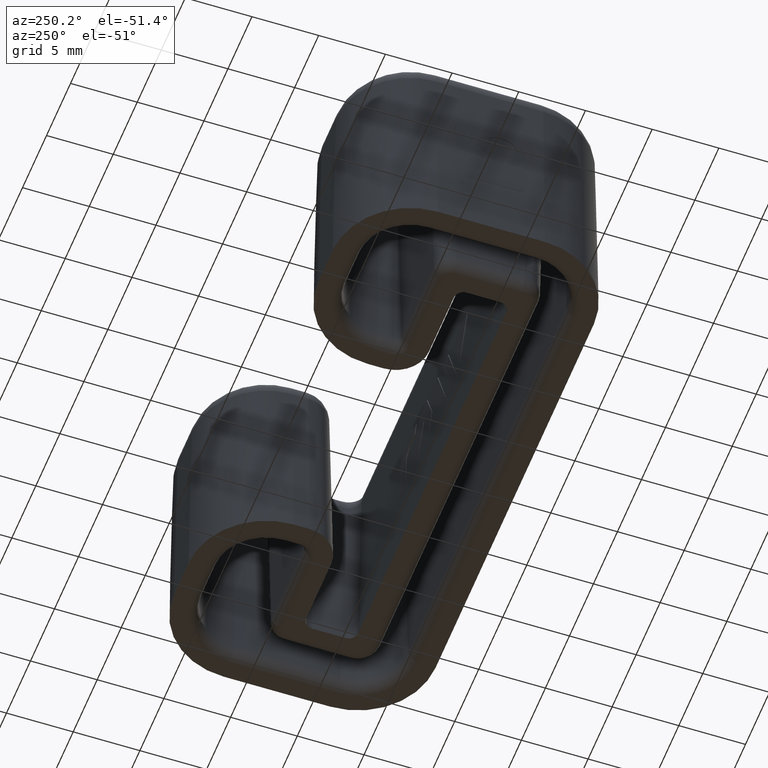
[diagram: clean part render]
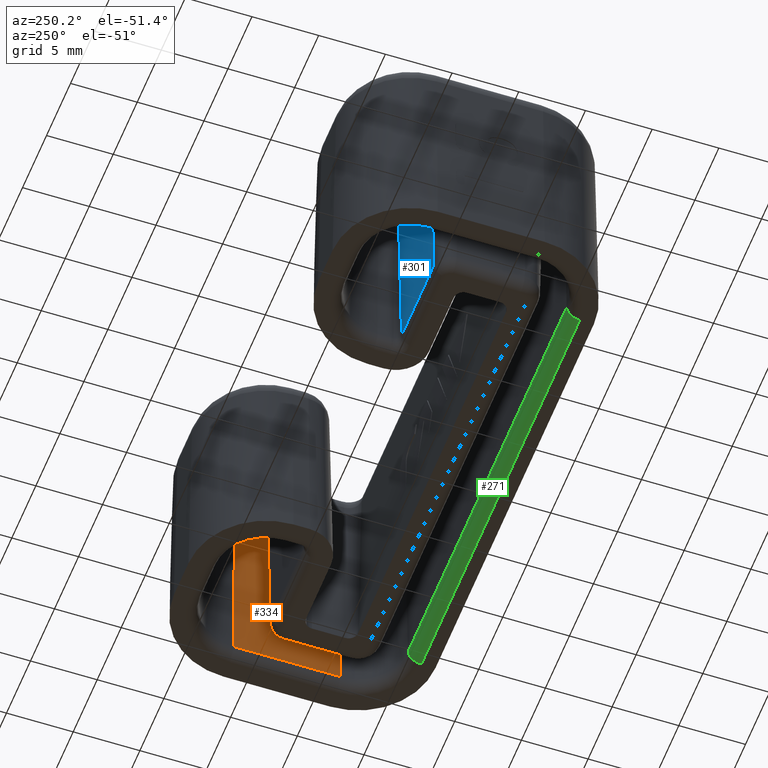
[diagram: same view with three faces highlighted in distinct colors, each labeled with its STEP entity id]
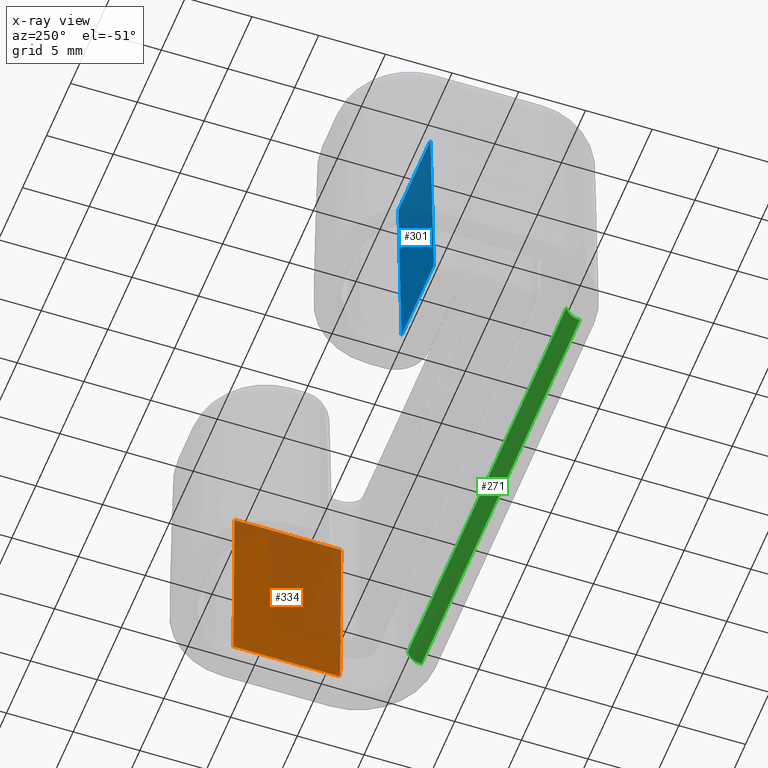
[diagram: x-ray of the same camera — body ghosted, the three highlighted faces saturated]
A machine part, auxiliary view with three faces highlighted in distinct colors.
The next image is the same camera in x-ray (body ghosted, the three faces saturated) — at least one of them is partly hidden behind the body in this view.
Their STEP definitions:

[orange] entity #334 — the highlighted planar face has unit normal (-0.9998, 0, -0.0175).
#334=ADVANCED_FACE('',(#716),#717,.T.);
#716=FACE_OUTER_BOUND('',#1138,.T.);
#717=PLANE('',#1139);
#1138=EDGE_LOOP('',(#2823,#2824,#2825,#2826));
#1139=AXIS2_PLACEMENT_3D('',#2827,#2828,#2829);
#2823=ORIENTED_EDGE('',*,*,#3325,.F.);
#2824=ORIENTED_EDGE('',*,*,#3195,.T.);
#2825=ORIENTED_EDGE('',*,*,#3281,.T.);
#2826=ORIENTED_EDGE('',*,*,#3264,.T.);
#2827=CARTESIAN_POINT('',(20.0,0.0,15.0));
#2828=DIRECTION('',(-0.999847695156391,0.0,-0.0174524064372835));
#2829=DIRECTION('',(-0.0174524064372835,0.0,0.999847695156391));
#3195=EDGE_CURVE('',#3878,#3868,#3882,.F.);
#3264=EDGE_CURVE('',#3999,#3997,#4000,.F.);
#3281=EDGE_CURVE('',#3868,#3999,#4018,.T.);
#3325=EDGE_CURVE('',#3878,#3997,#4083,.T.);
#3868=VERTEX_POINT('',#5412);
#3878=VERTEX_POINT('',#5422);
#3882=LINE('',#5427,#5428);
#3997=VERTEX_POINT('',#5567);
#3999=VERTEX_POINT('',#5569);
#4000=LINE('',#5570,#5571);
#4018=LINE('',#5604,#5605);
#4083=LINE('',#5702,#5703);
#5412=CARTESIAN_POINT('',(20.2446755418826,3.5,0.982547593562718));
#5422=CARTESIAN_POINT('',(20.2446755418826,11.5,0.982547593562718));
#5427=CARTESIAN_POINT('',(20.2446755418826,0.0,0.982547593562717));
#5428=VECTOR('',#6100,1000.0);
#5567=CARTESIAN_POINT('',(20.0,11.5,15.0));
#5569=CARTESIAN_POINT('',(20.0,3.5,15.0));
#5570=CARTESIAN_POINT('',(20.0,3.5,15.0));
#5571=VECTOR('',#6257,1000.0);
#5604=CARTESIAN_POINT('',(20.0,3.5,15.0));
#5605=VECTOR('',#6276,1000.0);
#5702=CARTESIAN_POINT('',(20.0,11.5,15.0));
#5703=VECTOR('',#6342,1000.0);
#6100=DIRECTION('',(0.0,1.0,0.0));
#6257=DIRECTION('',(0.0,-1.0,0.0));
#6276=DIRECTION('',(-0.0174524064372835,-2.16250708278889E-18,0.999847695156391));
#6342=DIRECTION('',(-0.0174524064372835,0.0,0.999847695156391));

[blue] entity #301 — the highlighted planar face has unit normal (0, 0.9998, -0.0175).
#301=ADVANCED_FACE('',(#649),#650,.T.);
#649=FACE_OUTER_BOUND('',#1071,.T.);
#650=PLANE('',#1072);
#1071=EDGE_LOOP('',(#2528,#2529,#2530,#2531));
#1072=AXIS2_PLACEMENT_3D('',#2532,#2533,#2534);
#2528=ORIENTED_EDGE('',*,*,#3273,.F.);
#2529=ORIENTED_EDGE('',*,*,#3221,.T.);
#2530=ORIENTED_EDGE('',*,*,#3274,.T.);
#2531=ORIENTED_EDGE('',*,*,#3253,.T.);
#2532=CARTESIAN_POINT('',(-16.5,10.1,15.0));
#2533=DIRECTION('',(0.0,0.999847695156391,-0.0174524064372835));
#2534=DIRECTION('',(0.0,0.0174524064372835,0.999847695156391));
#3221=EDGE_CURVE('',#3914,#3924,#3926,.F.);
#3253=EDGE_CURVE('',#3978,#3976,#3979,.F.);
#3273=EDGE_CURVE('',#3914,#3976,#4010,.T.);
#3274=EDGE_CURVE('',#3924,#3978,#4011,.T.);
#3914=VERTEX_POINT('',#5466);
#3924=VERTEX_POINT('',#5478);
#3926=LINE('',#5480,#5481);
#3976=VERTEX_POINT('',#5541);
#3978=VERTEX_POINT('',#5543);
#3979=LINE('',#5544,#5545);
#4010=LINE('',#5588,#5589);
#4011=LINE('',#5590,#5591);
#5466=CARTESIAN_POINT('',(-10.2,9.85532445811745,0.982547593562718));
#5478=CARTESIAN_POINT('',(-16.9,9.85532445811745,0.982547593562718));
#5480=CARTESIAN_POINT('',(-16.5,9.85532445811745,0.982547593562717));
#5481=VECTOR('',#6160,1000.0);
#5541=CARTESIAN_POINT('',(-10.2,10.1,15.0));
#5543=CARTESIAN_POINT('',(-16.9,10.1,15.0));
#5544=CARTESIAN_POINT('',(-16.5,10.1,15.0));
#5545=VECTOR('',#6234,1000.0);
#5588=CARTESIAN_POINT('',(-10.2,10.1,15.0));
#5589=VECTOR('',#6268,1000.0);
#5590=CARTESIAN_POINT('',(-16.9,10.1,15.0));
#5591=VECTOR('',#6269,1000.0);
#6160=DIRECTION('',(1.0,0.0,0.0));
#6234=DIRECTION('',(-1.0,0.0,0.0));
#6268=DIRECTION('',(0.0,0.0174524064372835,0.999847695156391));
#6269=DIRECTION('',(0.0,0.0174524064372835,0.999847695156391));

[green] entity #271 — the highlighted cylindrical surface (edge-blend (fillet) strip) has radius 1 mm, axis along (1, 0, -0).
#271=ADVANCED_FACE('',(#589),#590,.T.);
#589=FACE_OUTER_BOUND('',#1011,.T.);
#590=CYLINDRICAL_SURFACE('',#1012,1.0);
#1011=EDGE_LOOP('',(#2298,#2299,#2300,#2301));
#1012=AXIS2_PLACEMENT_3D('',#2302,#2303,#2304);
#2298=ORIENTED_EDGE('',*,*,#3181,.T.);
#2299=ORIENTED_EDGE('',*,*,#3182,.F.);
#2300=ORIENTED_EDGE('',*,*,#3179,.F.);
#2301=ORIENTED_EDGE('',*,*,#3183,.F.);
#2302=CARTESIAN_POINT('',(-16.5,-1.24452323703895,1.0));
#2303=DIRECTION('',(1.0,0.0,-0.0));
#2304=DIRECTION('',(0.0,0.0,1.0));
#3179=EDGE_CURVE('',#3853,#3855,#3856,.T.);
#3181=EDGE_CURVE('',#3858,#3859,#3860,.T.);
#3182=EDGE_CURVE('',#3855,#3859,#3861,.F.);
#3183=EDGE_CURVE('',#3858,#3853,#3862,.F.);
#3853=VERTEX_POINT('',#5393);
#3855=VERTEX_POINT('',#5395);
#3856=CIRCLE('',#5396,1.0);
#3858=VERTEX_POINT('',#5398);
#3859=VERTEX_POINT('',#5399);
#3860=CIRCLE('',#5400,1.0);
#3861=LINE('',#5401,#5402);
#3862=LINE('',#5403,#5404);
#5393=CARTESIAN_POINT('',(-16.5,-0.244675541882548,0.982547593562718));
#5395=CARTESIAN_POINT('',(-16.5,-1.24452323703895,0.0));
#5396=AXIS2_PLACEMENT_3D('',#6062,#6063,#6064);
#5398=CARTESIAN_POINT('',(16.5,-0.244675541882562,0.982547593562718));
#5399=CARTESIAN_POINT('',(16.5,-1.24452323703895,0.0));
#5400=AXIS2_PLACEMENT_3D('',#6068,#6069,#6070);
#5401=CARTESIAN_POINT('',(-16.5,-1.24452323703895,0.0));
#5402=VECTOR('',#6071,1000.0);
#5403=CARTESIAN_POINT('',(-16.5,-0.244675541882562,0.982547593562717));
#5404=VECTOR('',#6072,1000.0);
#6062=CARTESIAN_POINT('',(-16.5,-1.24452323703895,1.0));
#6063=DIRECTION('',(-1.0,0.0,0.0));
#6064=DIRECTION('',(0.0,0.0,1.0));
#6068=CARTESIAN_POINT('',(16.5,-1.24452323703894,1.0));
#6069=DIRECTION('',(-1.0,0.0,0.0));
#6070=DIRECTION('',(0.0,0.0,1.0));
#6071=DIRECTION('',(-1.0,0.0,0.0));
#6072=DIRECTION('',(1.0,0.0,0.0));